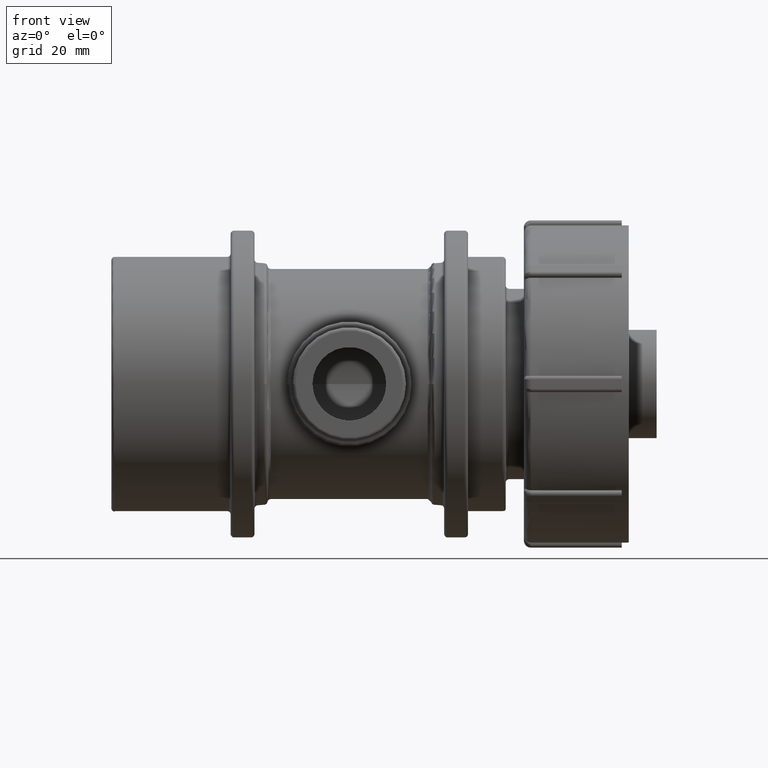
[diagram: clean part render]
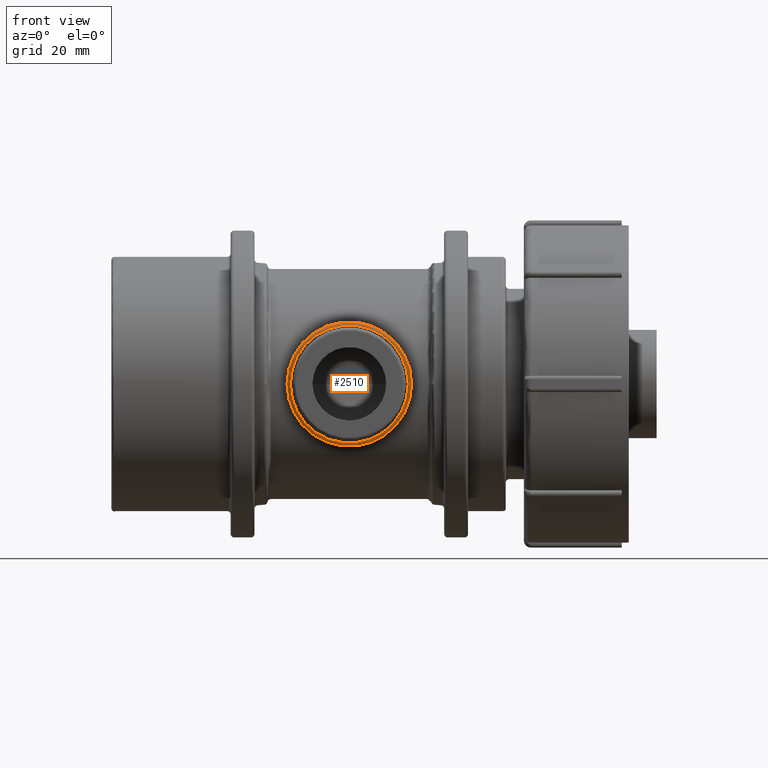
[diagram: same view with one face highlighted and labeled with its STEP entity id]
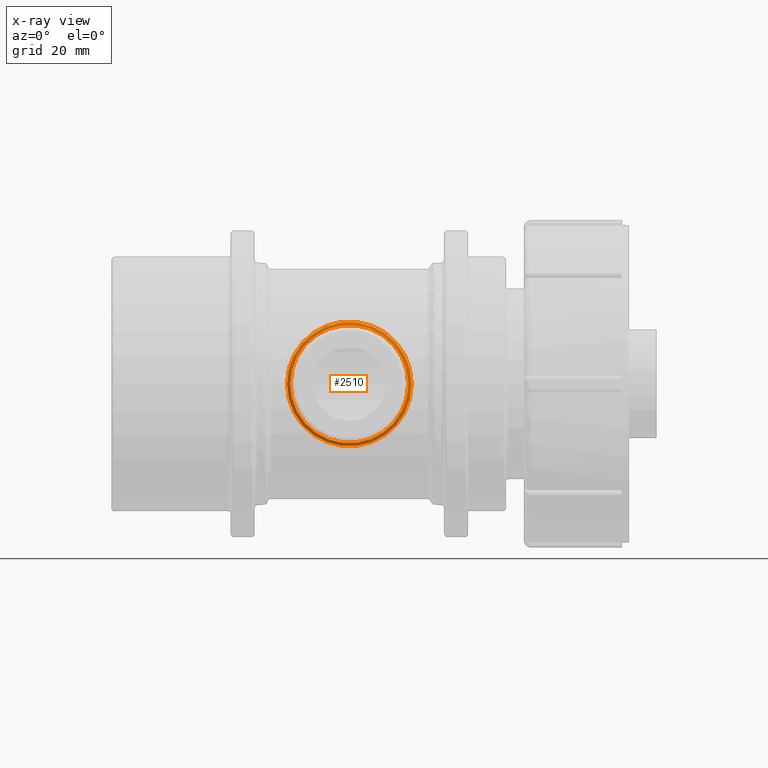
[diagram: x-ray of the same camera — body ghosted, the highlighted face saturated]
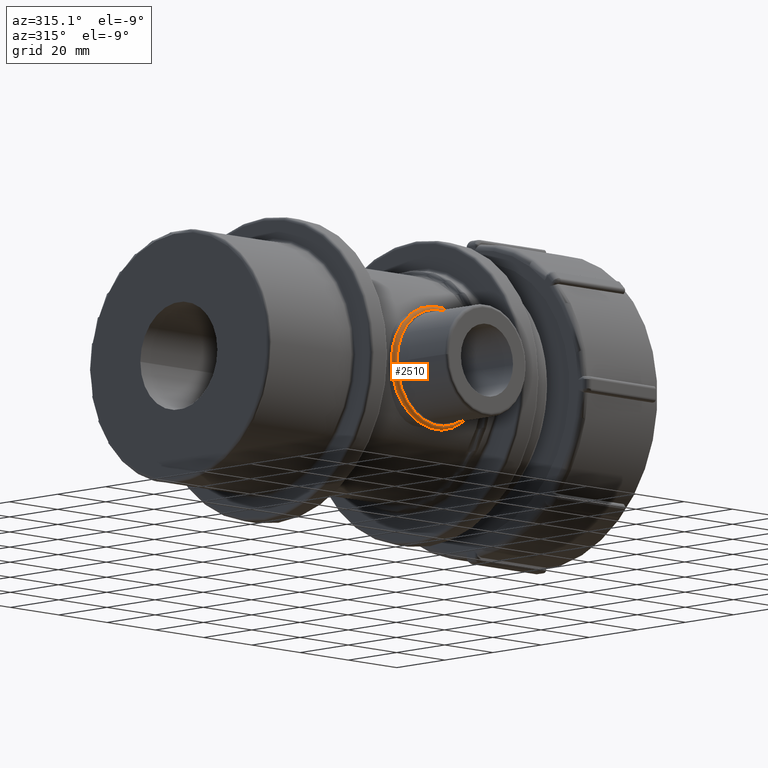
[diagram: same view with one face highlighted and labeled with its STEP entity id]
A machine part, front view. The second image highlights one B-rep face of the part: STEP entity #2510.
The next image is the same camera in x-ray: the body ghosted, the highlighted face saturated — about 0% of this face is hidden behind the body in this view.
A second angle (auxiliary view) of the same face is appended — the face is thin or edge-on in the first view.
In plain terms, the highlighted toroidal blend (fillet) surface has major radius 17.287 mm and minor (blend) radius 1 mm.
Its self-contained STEP definition (entity closure, byte-faithful):
#488=CIRCLE('',#2830,17.28695);
#490=CIRCLE('',#2833,17.28695);
#517=TOROIDAL_SURFACE('',#2832,17.28695,1.);
#570=FACE_BOUND('',#958,.T.);
#738=FACE_OUTER_BOUND('',#957,.T.);
#957=EDGE_LOOP('',(#2273));
#958=EDGE_LOOP('',(#2274));
#1248=VERTEX_POINT('',#5046);
#1250=VERTEX_POINT('',#5051);
#1592=EDGE_CURVE('',#1248,#1248,#488,.T.);
#1594=EDGE_CURVE('',#1250,#1250,#490,.T.);
#2273=ORIENTED_EDGE('',*,*,#1592,.T.);
#2274=ORIENTED_EDGE('',*,*,#1594,.T.);
#2510=ADVANCED_FACE('',(#738,#570),#517,.T.);
#2830=AXIS2_PLACEMENT_3D('',#5047,#3570,#3571);
#2832=AXIS2_PLACEMENT_3D('',#5050,#3574,#3575);
#2833=AXIS2_PLACEMENT_3D('',#5052,#3576,#3577);
#3570=DIRECTION('center_axis',(1.22464679914735E-16,-1.,0.));
#3571=DIRECTION('ref_axis',(1.,1.22464679914735E-16,0.));
#3574=DIRECTION('center_axis',(-1.22464679914735E-16,1.,0.));
#3575=DIRECTION('ref_axis',(0.,0.,1.));
#3576=DIRECTION('center_axis',(-1.22464679914735E-16,1.,0.));
#3577=DIRECTION('ref_axis',(1.,1.22464679914735E-16,0.));
#5046=CARTESIAN_POINT('',(-17.28695,-36.,-2.11704079845203E-15));
#5047=CARTESIAN_POINT('Origin',(4.40872847693047E-15,-36.,0.));
#5050=CARTESIAN_POINT('Origin',(4.53119315684521E-15,-37.,0.));
#5051=CARTESIAN_POINT('',(-17.28695,-38.,2.11704079845203E-15));
#5052=CARTESIAN_POINT('Origin',(4.65365783675994E-15,-38.,0.));